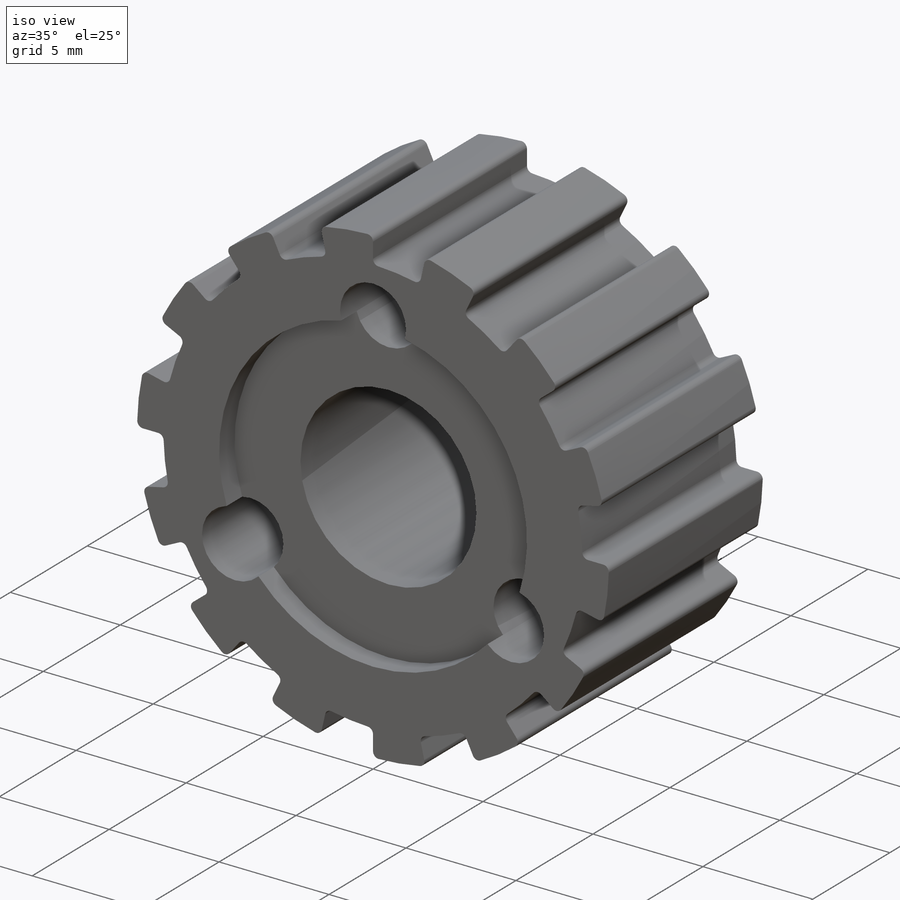
[diagram: iso view]
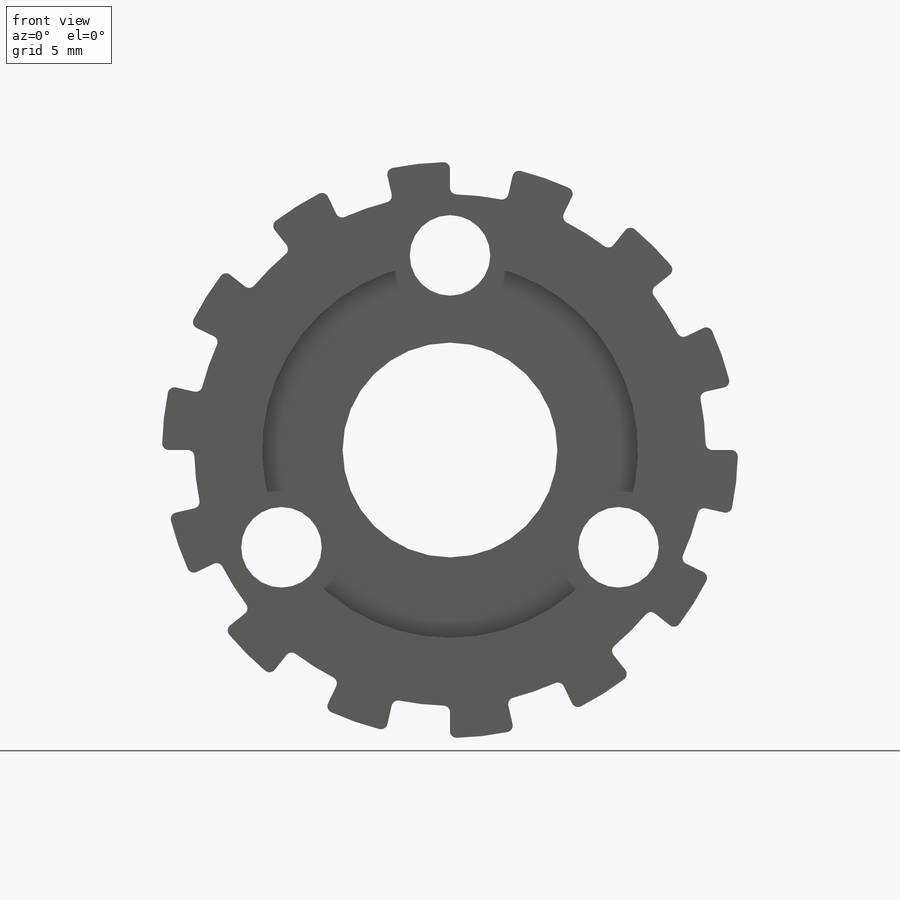
[diagram: front view]
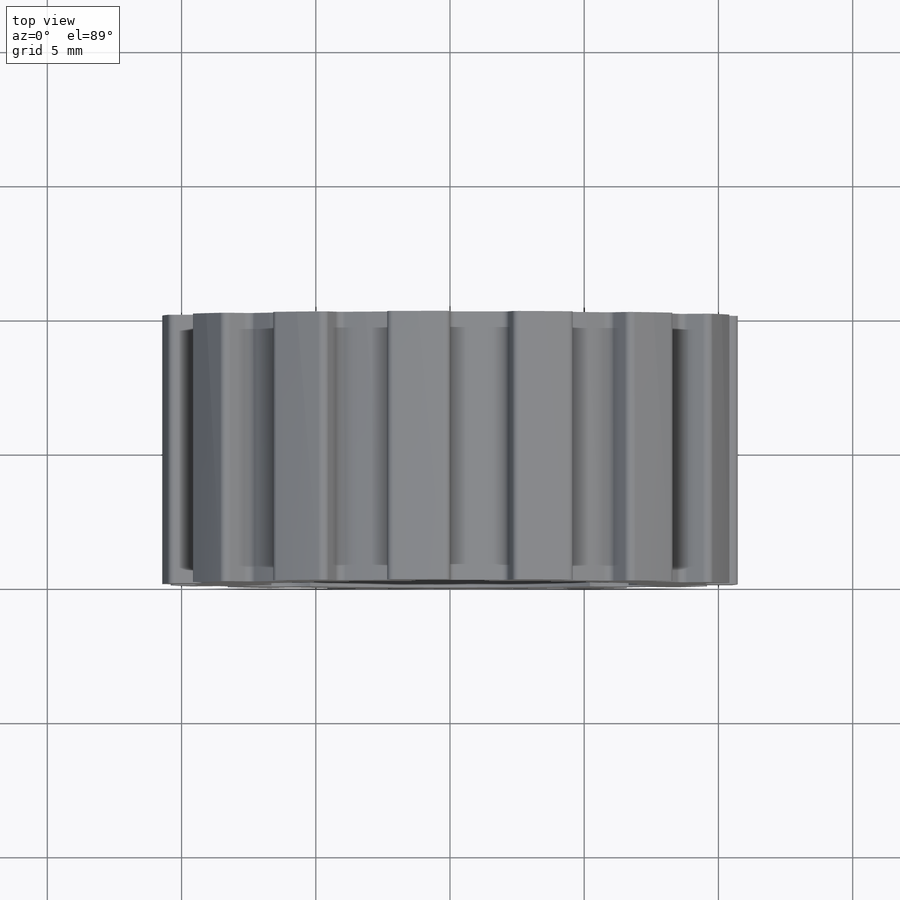
[diagram: top view]
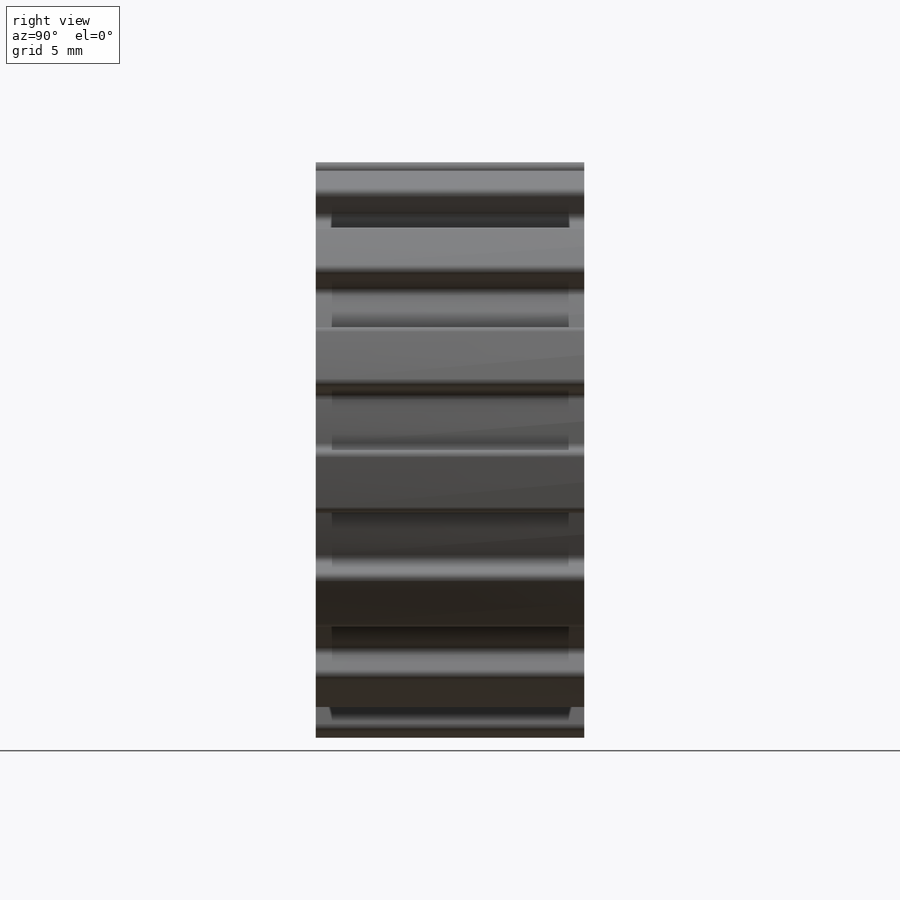
[diagram: right view]
SOLIDWORKS PART (.sldprt)
format: sldprt  version: not decoded by parser v0  size: 343,552 bytes
history: native  units: mm
features: sketch x4, plane x3, cut_extrude x2, material x1, extrude x1 (+11 scaffold rows collapsed)
feature tree (22):
  scaffold x11  (default folders/planes/origin — collapsed)
  material  "Matériau <non spécifié>"
  plane  "Plan de face"
  plane  "Plan de dessus"
  plane  "Plan de droite"
  sketch  "Esquisse1"  dims[c1.D1=0.25mm c1.D2=0.25mm c1.D3=0.25mm c1.D4=0.25mm c1.D5=0.25mm c1.D6=0.25mm c2.D3=6.0mm c2.D1=1.2mm]
  extrude  "Extrusion1"  Depth=10mm
  sketch  "Esquisse2"  dims[D1=~5.985855mm]
  sketch  "Esquisse3"  dims[D1=~3.899462mm]
  sketch  "Esquisse4"  dims[D1=7.0mm]
  cut_extrude  "Extrusion4"  [1 undecoded]
  cut_extrude  "Extrusion6"  Depth=1mm
decode coverage: 6 of 7 modeling features carry decoded parameters
note: ~ marks probable driven/reference dimensions
note: 1 parameter value undecoded
note: suppression state not decoded; provenance and decode notes live in map.json
